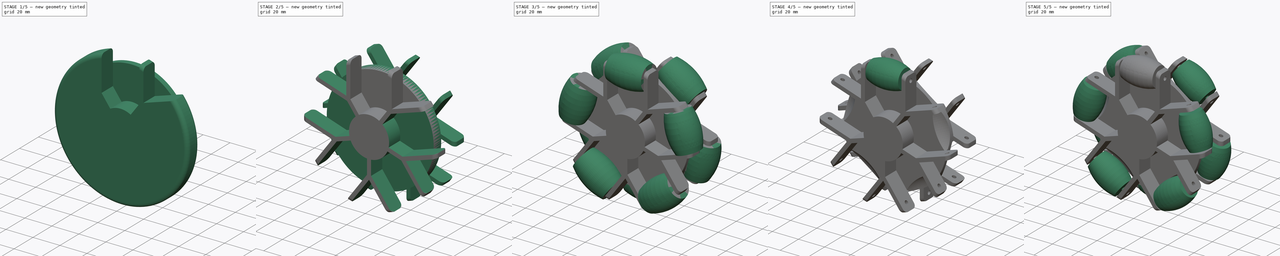
[diagram: build sequence overview — one tinted view per stage of 5, left to right]
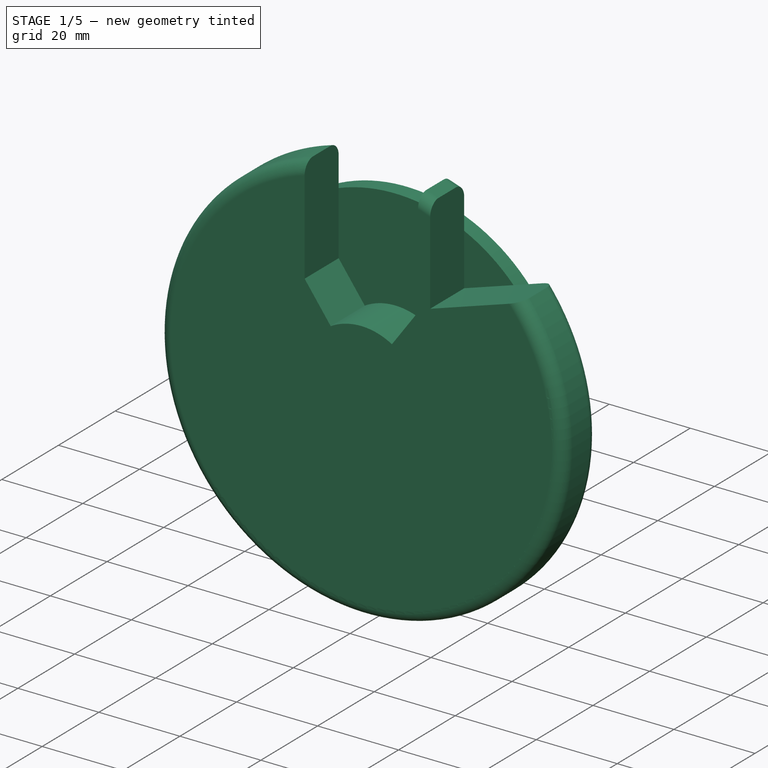
[diagram: stage 1 of 5 — iso view after this stage's code; geometry added in this stage tinted green]
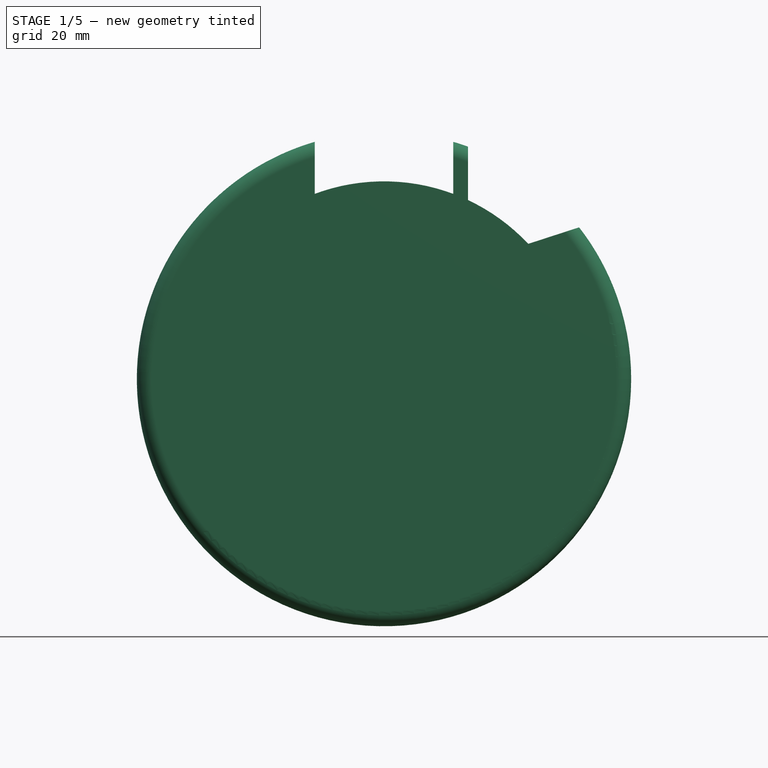
[diagram: stage 1 of 5 — front view after this stage's code; geometry added in this stage tinted green]
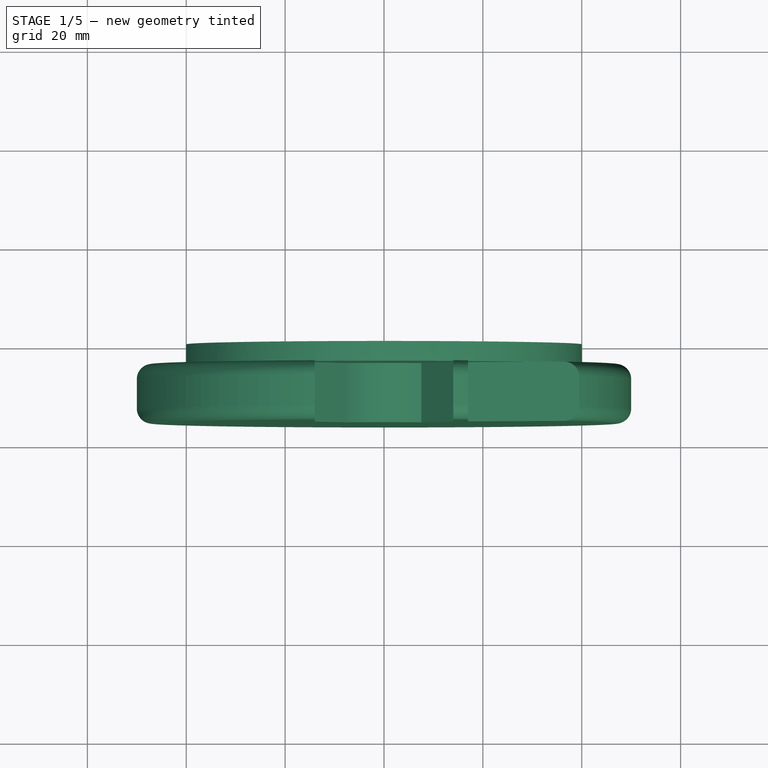
[diagram: stage 1 of 5 — top view after this stage's code; geometry added in this stage tinted green]
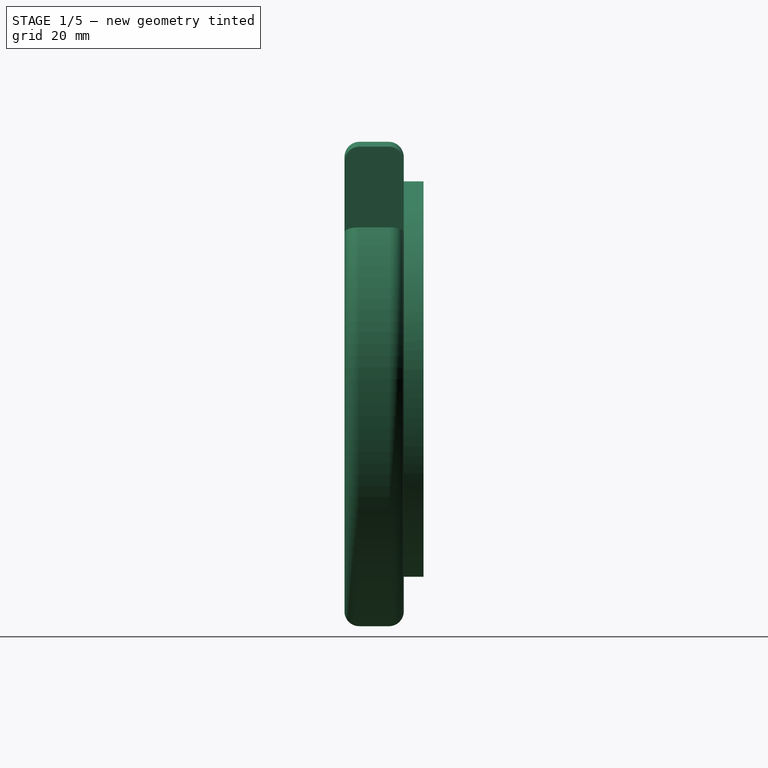
[diagram: stage 1 of 5 — right view after this stage's code; geometry added in this stage tinted green]
FCSTD DOCUMENT  (FreeCAD 0.16RUnknown)
Label: omniwheel
License: CreativeCommons Attribution-ShareAlike
LicenseURL: http://creativecommons.org/licenses/by-sa/4.0/
objects: Part::FeaturePython×10, Sketcher::SketchObject×5, Part::MultiFuse×3, PartDesign::Pad×2, PartDesign::Revolution×2, App::DocumentObjectGroup×2, Spreadsheet::Sheet×1, PartDesign::Fillet×1, PartDesign::Pocket×1, PartDesign::PolarPattern×1, Part::Cut×1
note: 31 computed .brp shape members not serialized (recipe doc carries the construction recipe); baked Part::Feature solids carry a one-line shape summary decoded from their .brp

FEATURE [Spreadsheet::Sheet] Spreadsheet  label="Datos"
  cells = A1=Omniwheel; A3=Base; D3=Rueda; A4=radio base; B4(radio_base)==Datos.ruedas_cantidad * 10 - 10; D4=largo; E4(rueda_largo)=25; D5=diametro central; E5(rueda_diametro_central)=20; A6=grosor pared; B6(base_grosor)=4; D6=diametro lateral; E6(rueda_diametro_lateral)=15; A10=Soportes; D10=tuerca; A11=radio soportes; B11(soportes_radio)==Datos.ruedas_cantidad * 10; D11=radio ; E11(tuerca_radio)=8; A12=altura; B12(soportes_altura)=12; A13=grosor paredes; B13(soportes_grosor)=3; D13=profundidad; E13(tuerca_profundidad)=6; A14=diametro tornillo; B14(soporte_diametro_tornillo)=3; A15=Cantidad ruedas; B15(ruedas_cantidad)=5; A16=angulo soportes; B16(soportes_angulos)==360 / Datos.ruedas_cantidad; A17=toletancia a ruedas; B17(soporte_tolerancias)=3; A18=posision rueda toletancia; B18(Soporte_pos_rueda)==Datos.soportes_radio - Datos.rueda_diametro_lateral * 0.5; A19=altura eje; B19(eje_altura)=10; A20=radio eje; B20(eje_radio)=15; A21=radio fillet; B21(soporte_radio_fillet)=3
FEATURE [Sketcher::SketchObject] Sketch
  Placement = pos=(0,0,0) rot=(1,0,0;1.5708rad)
  expr: Constraints[1] = Datos.radio_base
  sketch-geometry (1):
    g0: Circle CenterX=0 CenterY=0 CenterZ=0 NormalX=0 NormalY=0 NormalZ=1 Radius=40
  constraints (2):
    c: Coincident(g0,g-1)
    c: Radius(g0) = 40
FEATURE [PartDesign::Pad] Pad
  Length = 4
  Length2 = 100
  Placement = pos=(0,0,0) rot=(1,0,0;1.5708rad)
  Sketch = -> Sketch
  Type = 0
  expr: Length = Datos.base_grosor
FEATURE [Sketcher::SketchObject] Sketch001
  Placement = pos=(0,-4,0) rot=(1,0,0;1.5708rad)
  Support = -> Pad [Face3]
  expr: Constraints[1] = Spreadsheet.soportes_radio
  sketch-geometry (1):
    g0: Circle CenterX=0 CenterY=0 CenterZ=0 NormalX=0 NormalY=0 NormalZ=1 Radius=50
  constraints (2):
    c: Coincident(g0,g-1)
    c: Radius(g0) = 50
FEATURE [PartDesign::Pad] Pad001
  Length = 12
  Length2 = 100
  Placement = pos=(0,0,0) rot=(1,0,0;1.5708rad)
  Sketch = -> Sketch001
  Type = 0
  expr: Length = Datos.soportes_altura
FEATURE [PartDesign::Fillet] Fillet
  Base = -> Pad001 [Edge6,Edge4]
  Placement = pos=(0,0,0) rot=(1,0,0;1.5708rad)
  Radius = 3
  expr: Radius = Datos.soporte_radio_fillet
FEATURE [Sketcher::SketchObject] Sketch006
  ExternalGeometry = -> [Fillet]
  Placement = pos=(0,-16,0) rot=(1,0,0;1.5708rad)
  Support = -> Fillet [Face7]
  expr: Constraints[27] = Datos.soportes_grosor / 2
  expr: Constraints[35] = Datos.soportes_grosor
  expr: Constraints[23] = Datos.eje_radio
  expr: Constraints[17] = Datos.rueda_largo + Datos.soporte_tolerancias
  expr: Constraints[5] = Datos.soportes_angulos
  sketch-geometry (12):
    g0: LineSegment [constr] StartX=-29.3893 StartY=40.4508 StartZ=0 EndX=0 EndY=0 EndZ=0
    g1: LineSegment [constr] StartX=0 StartY=0 StartZ=0 EndX=29.3893 EndY=40.4508 EndZ=0
    g2: LineSegment StartX=-14 StartY=50 StartZ=0 EndX=14 EndY=50 EndZ=0
    g3: LineSegment StartX=14 StartY=50 StartZ=0 EndX=14 EndY=21.8213 EndZ=0
    g4: LineSegment StartX=14 StartY=21.8213 StartZ=0 EndX=7.55906 EndY=12.9561 EndZ=0
    g5: LineSegment StartX=-14 StartY=50 StartZ=0 EndX=-14 EndY=21.8213 EndZ=0
    g6: LineSegment StartX=-14 StartY=21.8213 StartZ=0 EndX=-7.55906 EndY=12.9561 EndZ=0
    g7: ArcOfCircle CenterX=0 CenterY=0 CenterZ=0 NormalX=0 NormalY=0 NormalZ=1 Radius=15 StartAngle=1.04265 EndAngle=2.09895
    g8: LineSegment [constr] StartX=7.55906 StartY=12.9561 StartZ=0 EndX=8.77258 EndY=12.0744 EndZ=0
    g9: LineSegment StartX=17 StartY=49.4522 StartZ=0 EndX=17 EndY=23.3985 EndZ=0
    g10: LineSegment StartX=17 StartY=23.3985 StartZ=0 EndX=41.7785 EndY=31.4495 EndZ=0
    g11: LineSegment StartX=41.7785 StartY=31.4495 StartZ=0 EndX=17 EndY=49.4522 EndZ=0
  constraints (36):
    c: Coincident(g0,g-1)
    c: Coincident(g0,g1)
    c: PointOnObject(g1,g-3)
    c: PointOnObject(g0,g-3)
    c: Symmetric(g0,g1,g-2)
    c: Angle(g1,g0) = 1.25664
    c: Horizontal(g2)
    c: Coincident(g2,g3)
    c: Coincident(g3,g4)
    c: Vertical(g5)
    c: Coincident(g5,g6)
    c: Coincident(g2,g5)
    c: Symmetric(g4,g6,g-2)
    c: Parallel(g4,g1)
    c: Parallel(g6,g0)
    c: Vertical(g3)
    c: Equal(g3,g5)
    c: DistanceX(g2,g2) = 28
    c: Coincident(g0,g7)
    c: Coincident(g0,g-3)
    c: Coincident(g6,g7)
    c: Coincident(g4,g7)
    c: Tangent(g2,g-3)
    c: Radius(g7) = 15
    c: Coincident(g8,g4)
    c: PointOnObject(g8,g1)
    c: Perpendicular(g1,g8)
    c: Distance(g8) = 1.5
    c: Vertical(g9)
    c: Coincident(g9,g10)
    c: Coincident(g10,g11)
    c: Coincident(g9,g11)
    c: Symmetric(g10,g9,g1)
    c: PointOnObject(g9,g1)
    c: Tangent(g11,g-3)
    c: DistanceX(g3,g9) = 3
FEATURE [PartDesign::Pocket] Pocket
  Length = 12
  Placement = pos=(0,0,0) rot=(1,0,0;1.5708rad)
  Sketch = -> Sketch006
  Type = 0
  expr: Length = Datos.soportes_altura
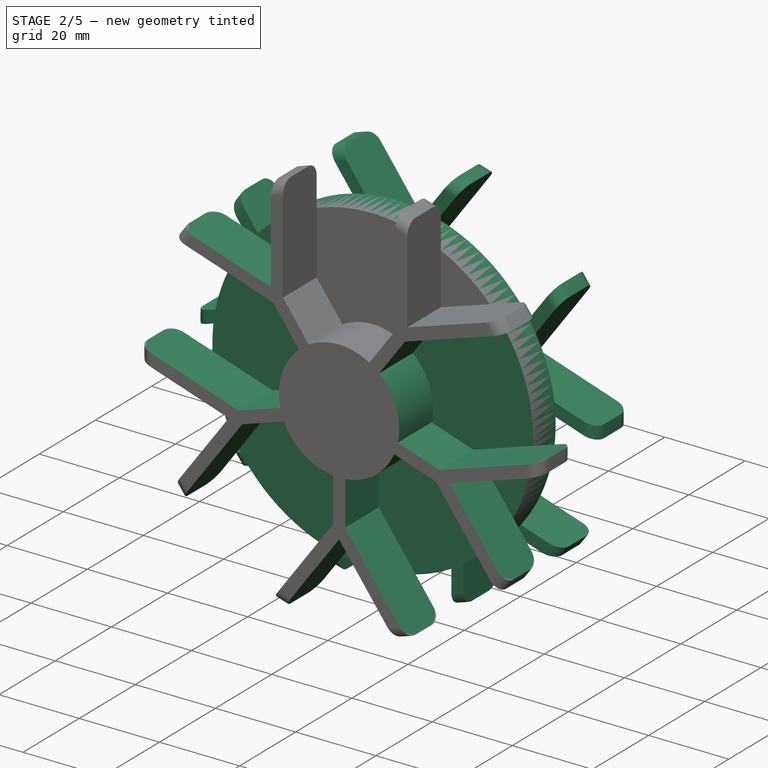
[diagram: stage 2 of 5 — iso view after this stage's code; geometry added in this stage tinted green]
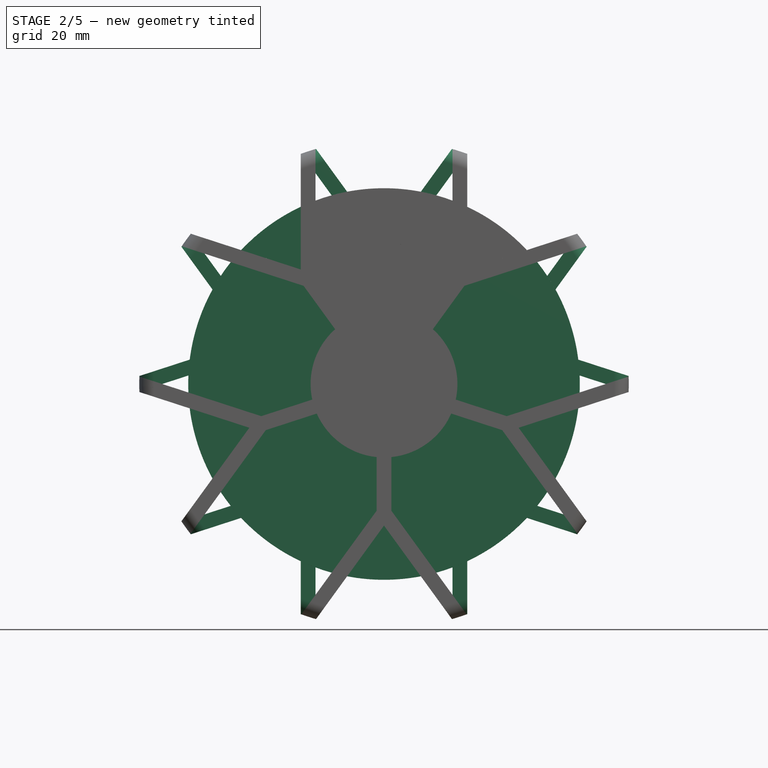
[diagram: stage 2 of 5 — front view after this stage's code; geometry added in this stage tinted green]
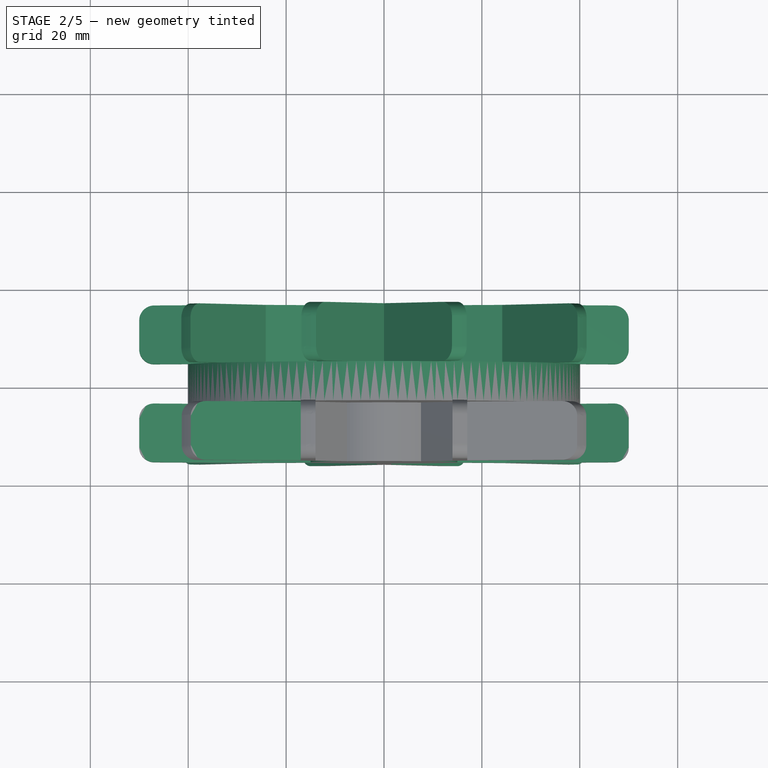
[diagram: stage 2 of 5 — top view after this stage's code; geometry added in this stage tinted green]
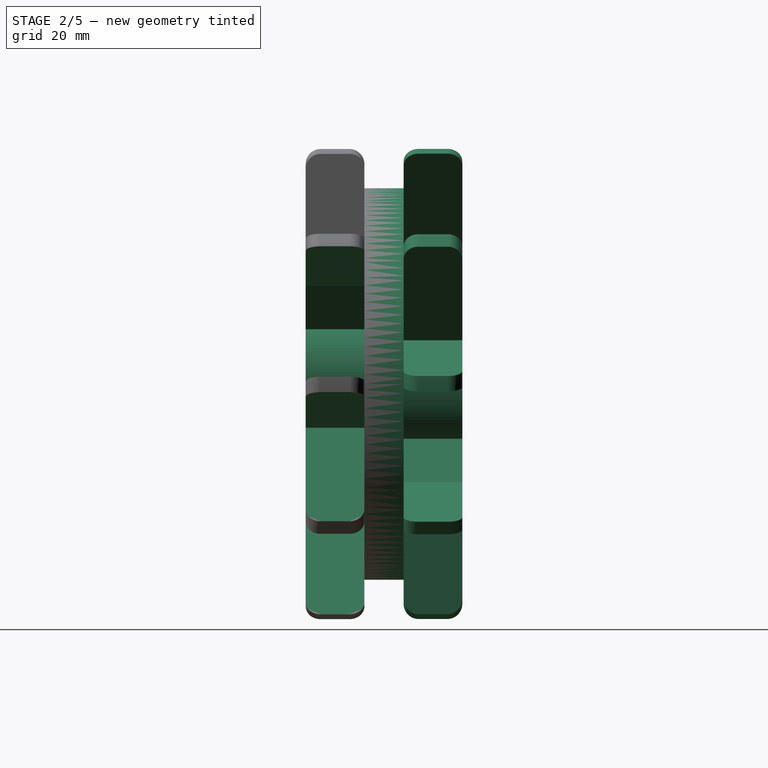
[diagram: stage 2 of 5 — right view after this stage's code; geometry added in this stage tinted green]
FEATURE [App::DocumentObjectGroup] Group001  label="Base"
  Group = -> [Pad,Pad001,Fillet,Pocket]
FEATURE [PartDesign::PolarPattern] PolarPattern
  Angle = 360
  Axis = -> Sketch006 [N_Axis]
  Occurrences = 5
  Originals = -> [Pocket]
  Placement = pos=(0,0,0) rot=(1,0,0;1.5708rad)
  expr: Occurrences = Datos.ruedas_cantidad
FEATURE [App::DocumentObjectGroup] Group  label="Originales"
  Group = -> [Array,Revolution,Group001,Revolution001,Array001,PolarPattern]
FEATURE [Part::FeaturePython] Clone008  label="Clone of PolarPattern"  # Draft clone (typed FeaturePython)
  Objects = -> [PolarPattern]
  Placement = pos=(0,0,0) rot=(1,0,0;1.5708rad)
  Scale = (1,1,1)
FEATURE [Part::FeaturePython] Clone009  label="Clone of PolarPattern001"  # Draft clone (typed FeaturePython)
  Objects = -> [PolarPattern]
  Placement = pos=(0,0,0) rot=(-1,0,0;1.5708rad)
  Scale = (1,1,1)
FEATURE [Part::MultiFuse] Fusion
  Shapes = -> [Clone008,Clone009]
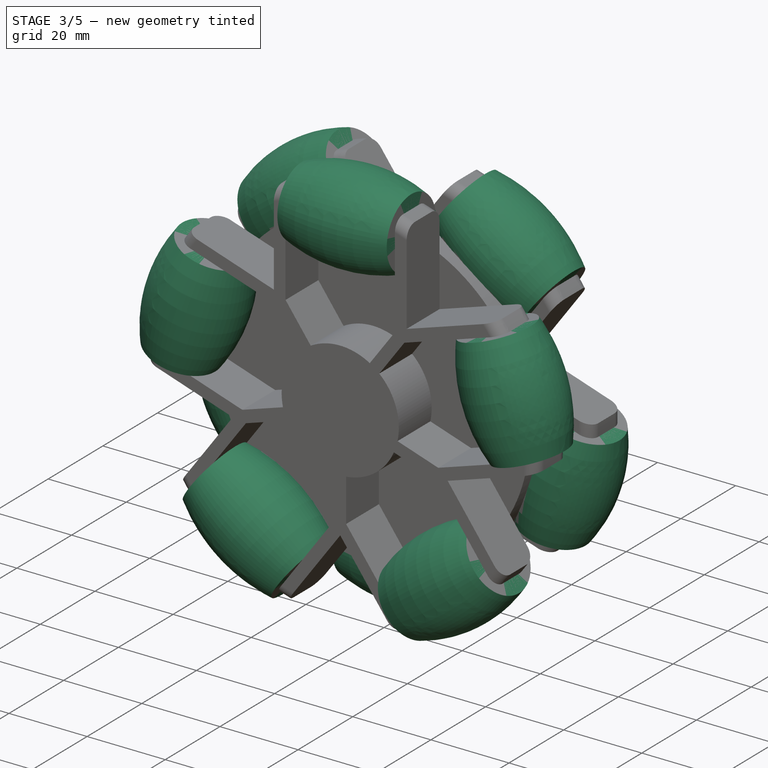
[diagram: stage 3 of 5 — iso view after this stage's code; geometry added in this stage tinted green]
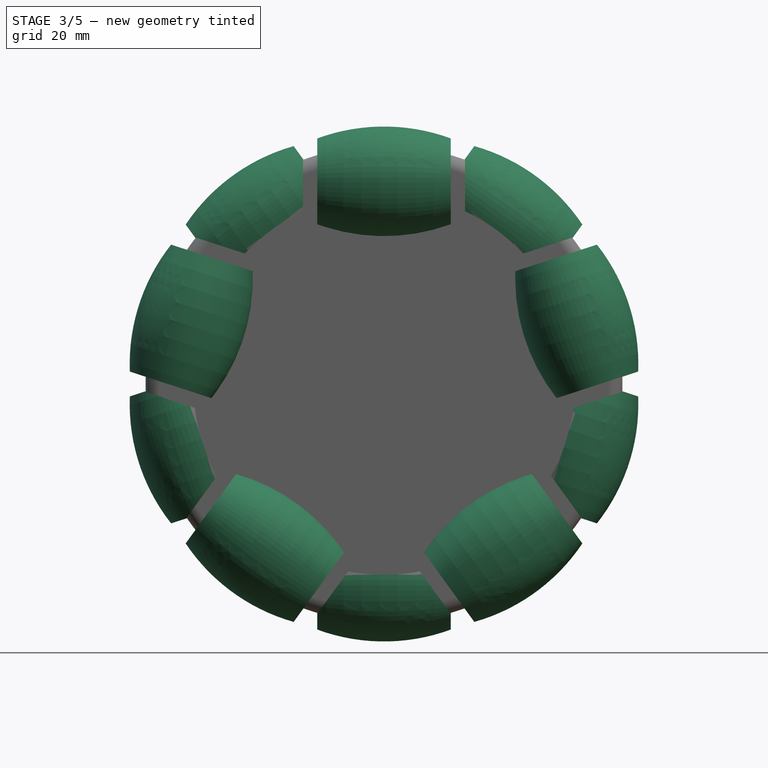
[diagram: stage 3 of 5 — front view after this stage's code; geometry added in this stage tinted green]
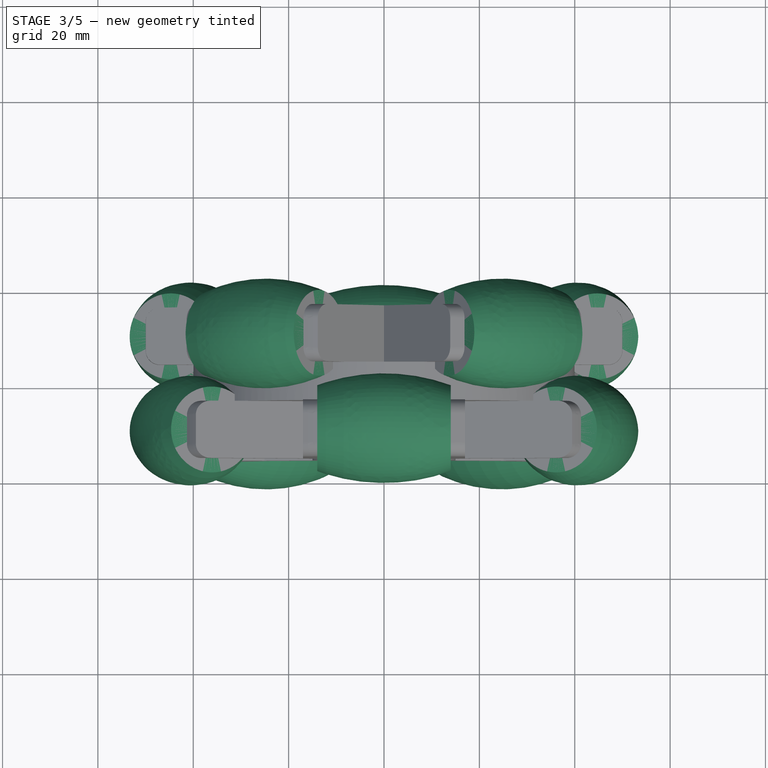
[diagram: stage 3 of 5 — top view after this stage's code; geometry added in this stage tinted green]
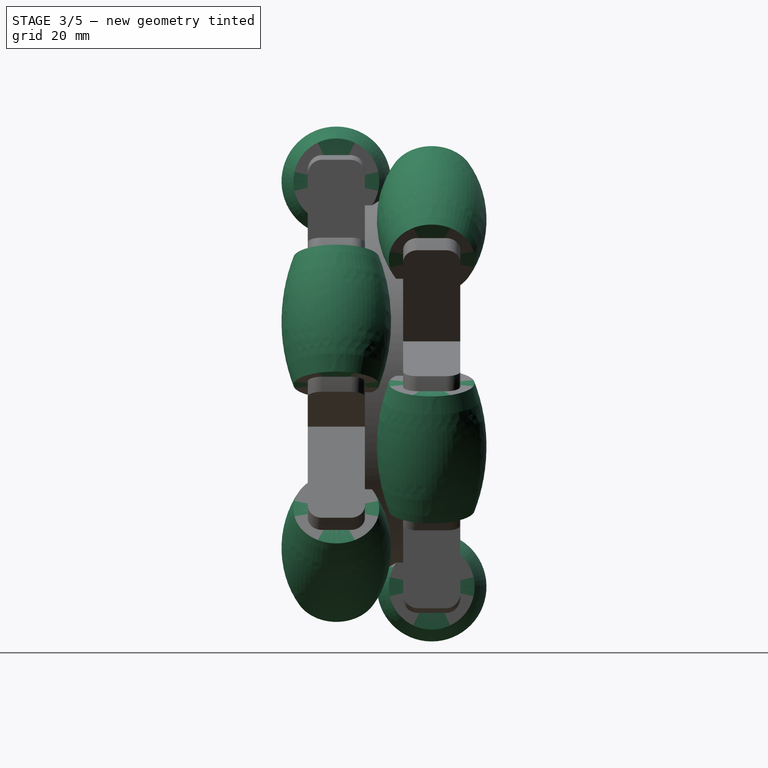
[diagram: stage 3 of 5 — right view after this stage's code; geometry added in this stage tinted green]
FEATURE [Sketcher::SketchObject] Sketch004
  Placement = pos=(0,0,0) rot=(1,0,0;1.5708rad)
  expr: Constraints[24] = Datos.soporte_diametro_tornillo / 2
  expr: Constraints[23] = Datos.rueda_largo + Datos.soporte_tolerancias
  expr: Constraints[22] = (Datos.rueda_diametro_central + Datos.soporte_tolerancias) / 2
  expr: Constraints[15] = Datos.soportes_grosor
  expr: Constraints[18] = (Datos.rueda_diametro_lateral + Datos.soporte_tolerancias) / 2
  sketch-geometry (9):
    g0: LineSegment StartX=-14 StartY=9 StartZ=0 EndX=-14 EndY=1.5 EndZ=0
    g1: LineSegment StartX=-14 StartY=1.5 StartZ=0 EndX=-17 EndY=1.5 EndZ=0
    g2: LineSegment StartX=-17 StartY=1.5 StartZ=0 EndX=-17 EndY=0 EndZ=0
    g3: LineSegment StartX=-17 StartY=0 StartZ=0 EndX=17 EndY=0 EndZ=0
    g4: LineSegment StartX=17 StartY=0 StartZ=0 EndX=17 EndY=1.5 EndZ=0
    g5: LineSegment StartX=17 StartY=1.5 StartZ=0 EndX=14 EndY=1.5 EndZ=0
    g6: LineSegment StartX=14 StartY=1.5 StartZ=0 EndX=14 EndY=9 EndZ=0
    g7: ArcOfCircle CenterX=2e-12 CenterY=-28.95 CenterZ=0 NormalX=0 NormalY=0 NormalZ=1 Radius=40.45 StartAngle=1.21738 EndAngle=1.92421
    g8: GeomPoint [constr] X=0 Y=11.5 Z=0
  constraints (25):
    c: Coincident(g0,g1)
    c: Coincident(g1,g2)
    c: Vertical(g2)
    c: Coincident(g2,g3)
    c: Coincident(g3,g4)
    c: Vertical(g4)
    c: Coincident(g4,g5)
    c: Coincident(g5,g6)
    c: Vertical(g6)
    c: Equal(g2,g4)
    c: Horizontal(g1)
    c: Horizontal(g5)
    c: Vertical(g0)
    c: Symmetric(g0,g6,g-2)
    c: Symmetric(g1,g4,g-2)
    c: DistanceX(g1,g1) = 3
    c: Coincident(g0,g7)
    c: Coincident(g6,g7)
    c: DistanceY(g0) = 9
    c: PointOnObject(g8,g-2)
    c: PointOnObject(g8,g7)
    c: Tangent(g3,g-1)
    c: DistanceY(g8) = 11.5
    c: DistanceX(g0,g6) = 28
    c: DistanceY(g2,g2) = 1.5
FEATURE [PartDesign::Revolution] Revolution
  Angle = 360
  Axis = (1,0,0)
  Base = (0,0,0)
  Placement = pos=(0,0,0) rot=(1,0,0;1.5708rad)
  ReferenceAxis = -> Sketch004 [H_Axis]
  Sketch = -> Sketch004
FEATURE [Part::FeaturePython] Clone  label="Clone of Revolution"  # Draft clone (typed FeaturePython)
  Objects = -> [Revolution]
  Placement = pos=(0,-10,42.5) rot=(1,0,0;1.5708rad)
  Scale = (1,1,1)
  expr: Placement.Base.z = Datos.Soporte_pos_rueda
FEATURE [Part::FeaturePython] Array  # Draft array (typed FeaturePython)
  Angle = 360
  ArrayType = 1
  Axis = (0,1,0)
  Base = -> Clone
  Center = (0,0,0)
  Fuse = false
  IntervalAxis = (0,0,0)
  IntervalX = (1,0,0)
  IntervalY = (0,1,0)
  IntervalZ = (0,0,0)
  NumberPolar = 5
  NumberX = 2
  NumberY = 2
  NumberZ = 1
  expr: NumberPolar = Datos.ruedas_cantidad
FEATURE [Part::FeaturePython] Clone002  label="Clone of Array"  # Draft clone (typed FeaturePython)
  Objects = -> [Array]
  Placement = pos=(0,0,0) rot=(1,0,0;3.14159rad)
  Scale = (1,1,1)
FEATURE [Part::FeaturePython] Clone004  label="Clone of Array001"  # Draft clone (typed FeaturePython)
  Objects = -> [Array]
  Scale = (1,1,1)
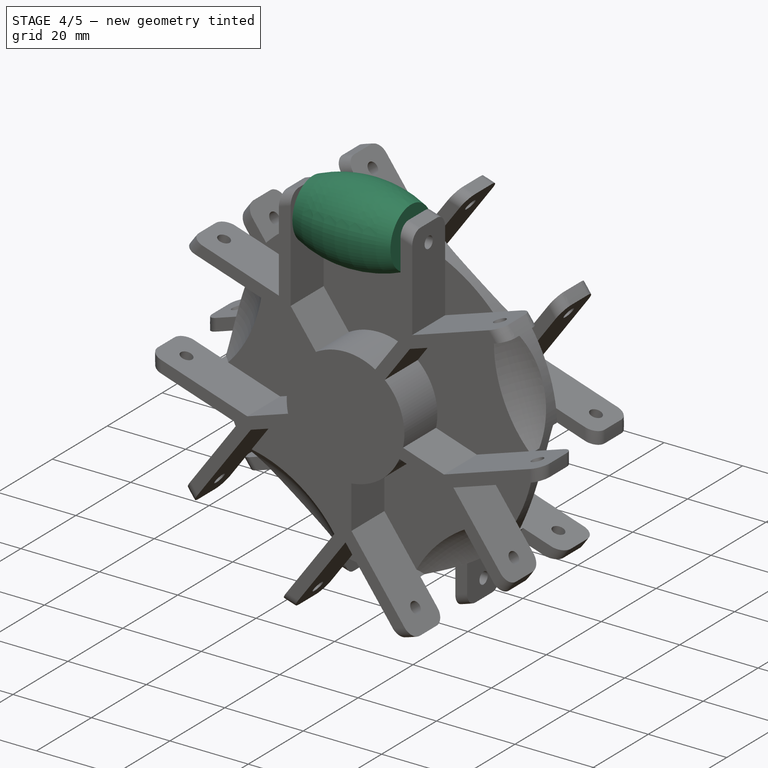
[diagram: stage 4 of 5 — iso view after this stage's code; geometry added in this stage tinted green]
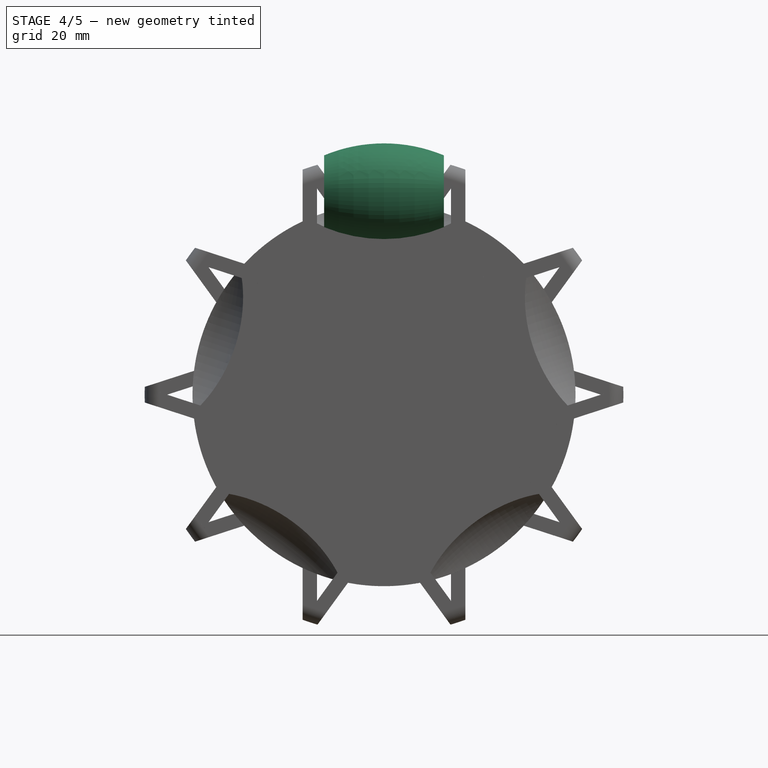
[diagram: stage 4 of 5 — front view after this stage's code; geometry added in this stage tinted green]
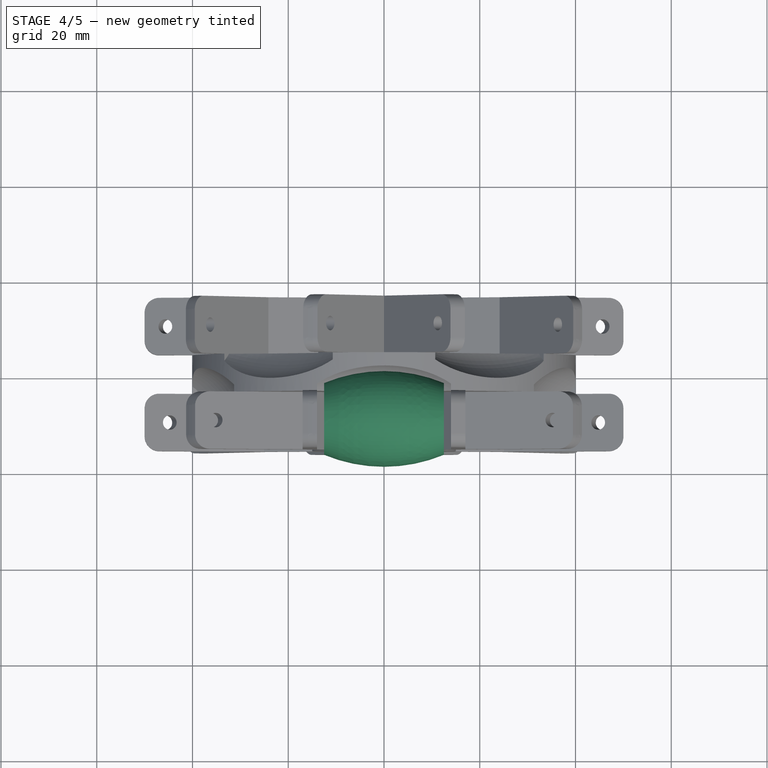
[diagram: stage 4 of 5 — top view after this stage's code; geometry added in this stage tinted green]
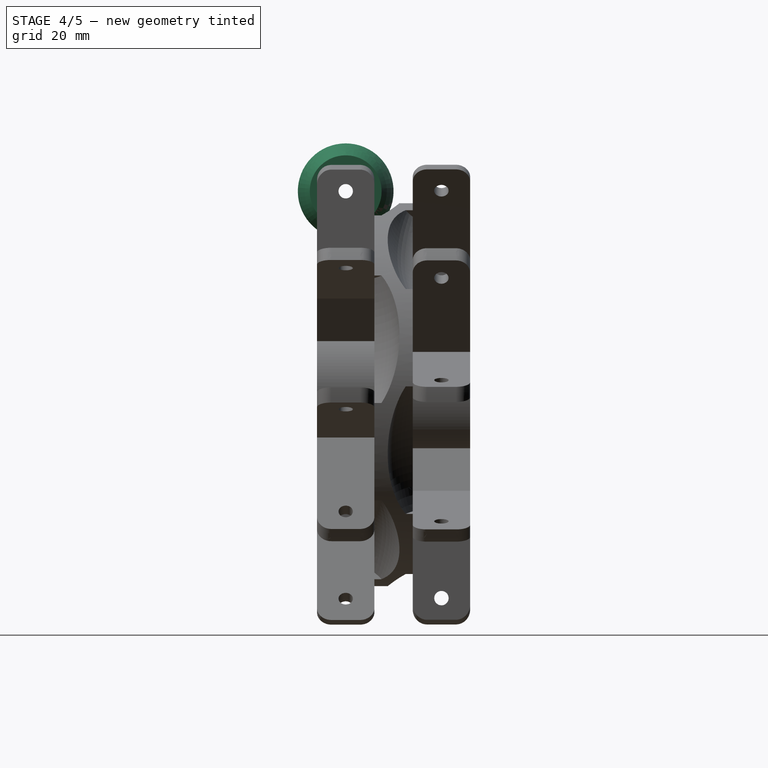
[diagram: stage 4 of 5 — right view after this stage's code; geometry added in this stage tinted green]
FEATURE [Part::MultiFuse] Fusion001
  Shapes = -> [Clone002,Clone004]
FEATURE [Sketcher::SketchObject] Sketch005
  Placement = pos=(0,0,0) rot=(1,0,0;1.5708rad)
  expr: Constraints[13] = Datos.soporte_diametro_tornillo / 2
  expr: Constraints[5] = Datos.rueda_diametro_lateral / 2
  expr: Constraints[9] = Datos.rueda_largo
  sketch-geometry (5):
    g0: LineSegment StartX=-12.5 StartY=7.5 StartZ=0 EndX=-12.5 EndY=1.5 EndZ=0
    g1: LineSegment StartX=12.5 StartY=1.5 StartZ=0 EndX=12.5 EndY=7.5 EndZ=0
    g2: ArcOfCircle CenterX=0 CenterY=-22.5 CenterZ=0 NormalX=0 NormalY=0 NormalZ=1 Radius=32.5 StartAngle=1.17601 EndAngle=1.96559
    g3: GeomPoint [constr] X=0 Y=10 Z=0
    g4: LineSegment StartX=-12.5 StartY=1.5 StartZ=0 EndX=12.5 EndY=1.5 EndZ=0
  constraints (14):
    c: Vertical(g1)
    c: Vertical(g0)
    c: Symmetric(g0,g1,g-2)
    c: Coincident(g0,g2)
    c: Coincident(g1,g2)
    c: DistanceY(g0) = 7.5
    c: PointOnObject(g3,g-2)
    c: PointOnObject(g3,g2)
    c: DistanceY(g3) = 10
    c: DistanceX(g0,g1) = 25
    c: Horizontal(g4)
    c: Coincident(g1,g4)
    c: Coincident(g0,g4)
    c: DistanceY(g0) = 1.5
FEATURE [PartDesign::Revolution] Revolution001
  Angle = 360
  Axis = (1,0,0)
  Base = (0,0,0)
  Placement = pos=(0,0,0) rot=(1,0,0;1.5708rad)
  ReferenceAxis = -> Sketch005 [H_Axis]
  Sketch = -> Sketch005
FEATURE [Part::FeaturePython] Clone005  label="Clone of Revolution001"  # Draft clone (typed FeaturePython)
  Objects = -> [Revolution001]
  Placement = pos=(0,-10,42.5) rot=(1,0,0;1.5708rad)
  Scale = (1,1,1)
  expr: Placement.Base.z = Datos.Soporte_pos_rueda
FEATURE [Part::Cut] Cut
  Base = -> Fusion
  Tool = -> Fusion001
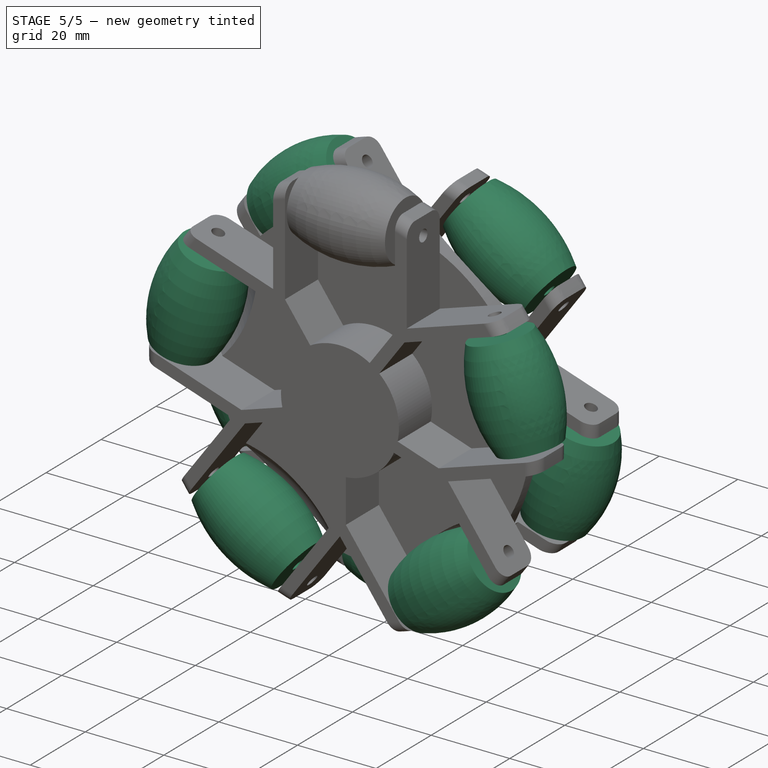
[diagram: stage 5 of 5 — iso view after this stage's code; geometry added in this stage tinted green]
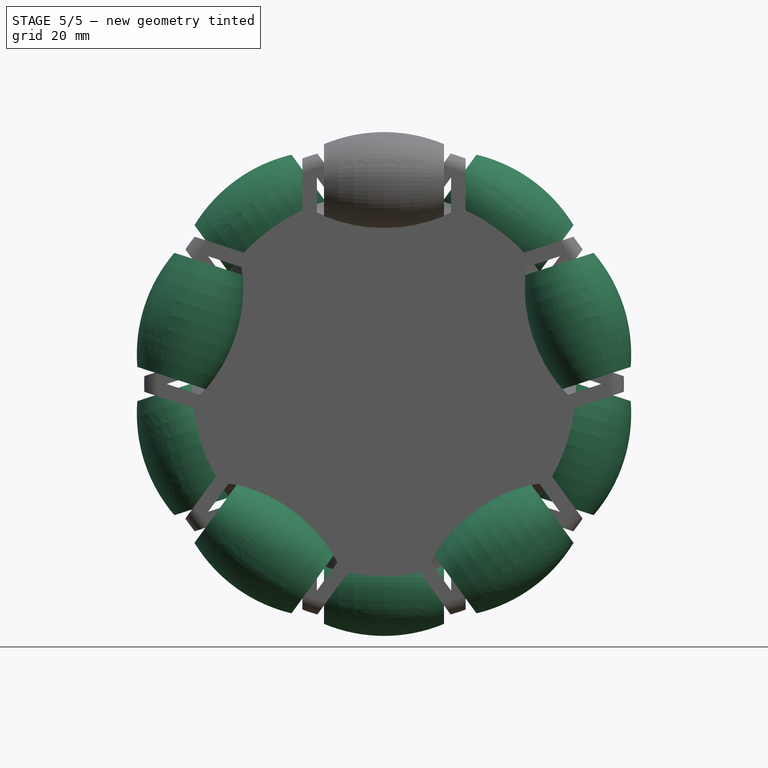
[diagram: stage 5 of 5 — front view after this stage's code; geometry added in this stage tinted green]
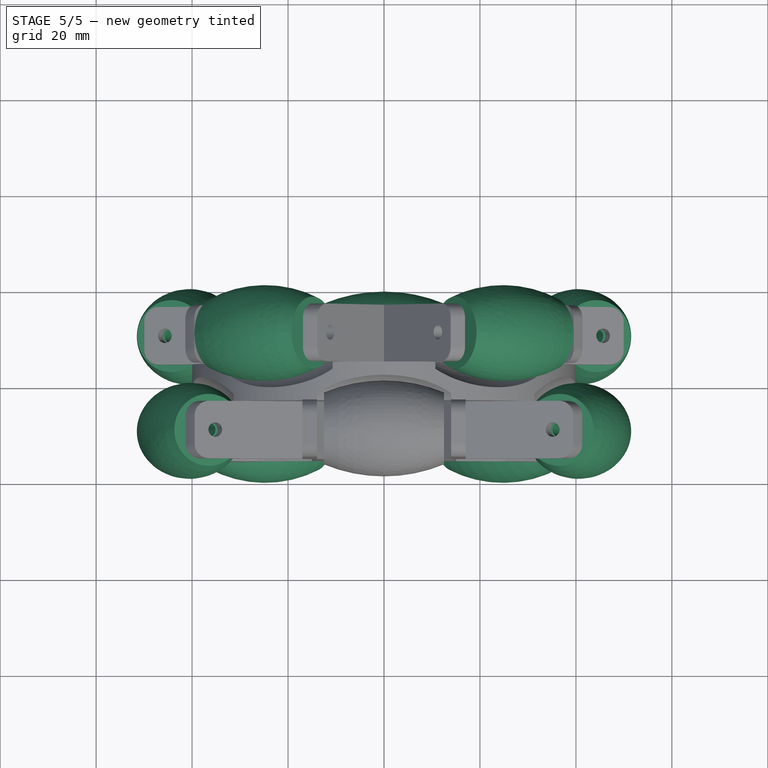
[diagram: stage 5 of 5 — top view after this stage's code; geometry added in this stage tinted green]
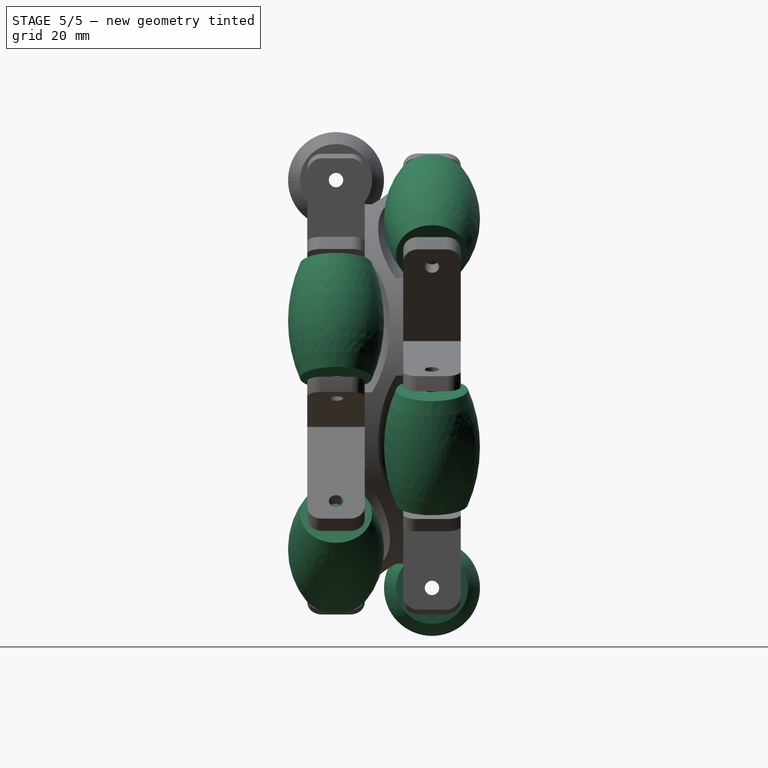
[diagram: stage 5 of 5 — right view after this stage's code; geometry added in this stage tinted green]
FEATURE [Part::FeaturePython] Array001  # Draft array (typed FeaturePython)
  Angle = 360
  ArrayType = 1
  Axis = (0,1,0)
  Base = -> Clone005
  Center = (0,0,0)
  Fuse = false
  IntervalAxis = (0,0,0)
  IntervalX = (1,0,0)
  IntervalY = (0,1,0)
  IntervalZ = (0,0,0)
  NumberPolar = 5
  NumberX = 2
  NumberY = 2
  NumberZ = 1
  expr: NumberPolar = Datos.ruedas_cantidad
FEATURE [Part::FeaturePython] Clone006  label="Clone of Array002"  # Draft clone (typed FeaturePython)
  Objects = -> [Array001]
  Scale = (1,1,1)
FEATURE [Part::FeaturePython] Clone007  label="Clone of Clone of Array002"  # Draft clone (typed FeaturePython)
  Objects = -> [Clone006]
  Placement = pos=(0,0,0) rot=(1,0,0;3.14159rad)
  Scale = (1,1,1)
FEATURE [Part::MultiFuse] Fusion002
  Shapes = -> [Clone006,Clone007]
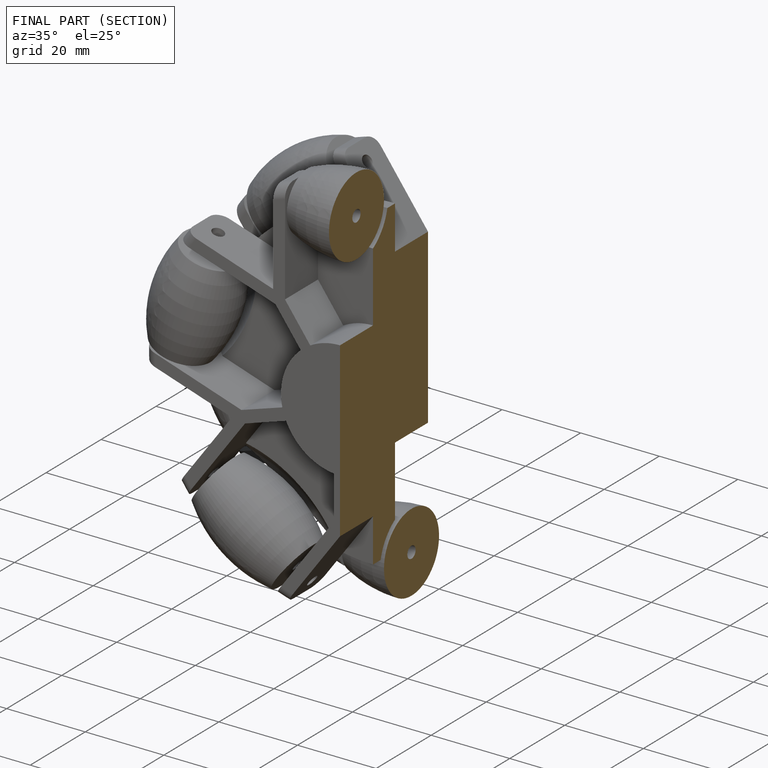
[diagram: finished part — half-section view (interior)]
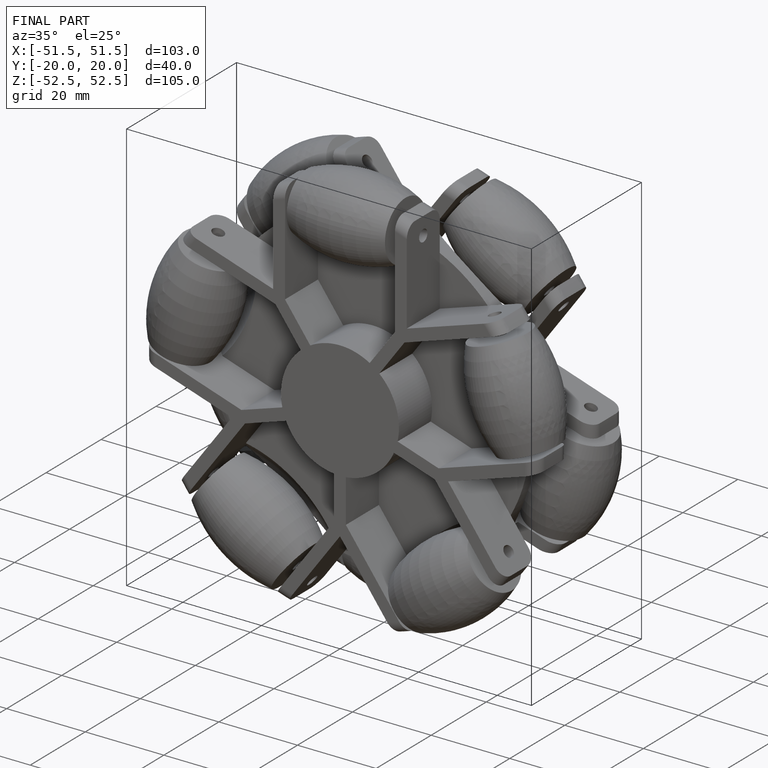
[diagram: finished part — iso view with bounding-box wireframe]
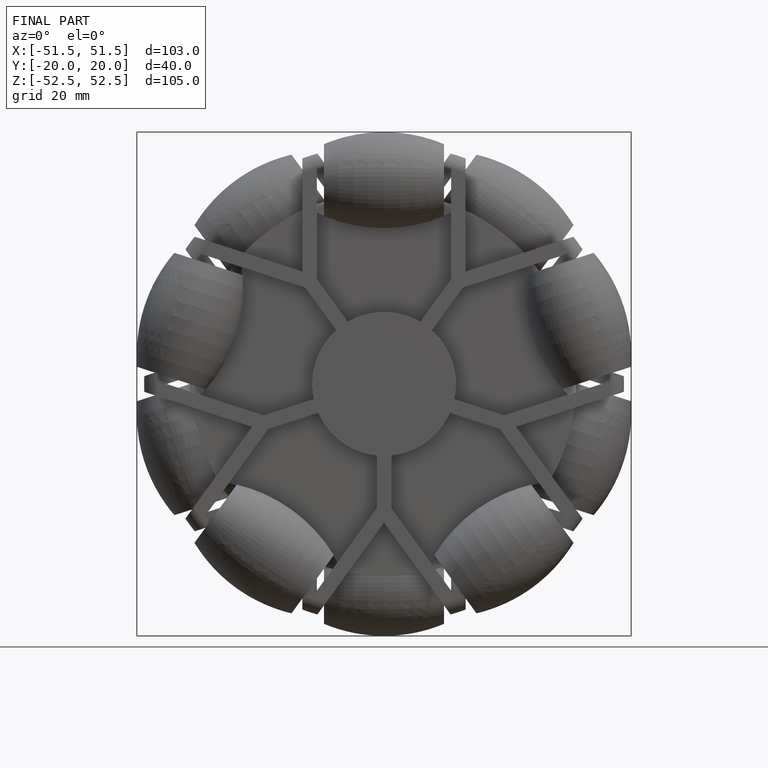
[diagram: finished part — front view with bounding-box wireframe]
